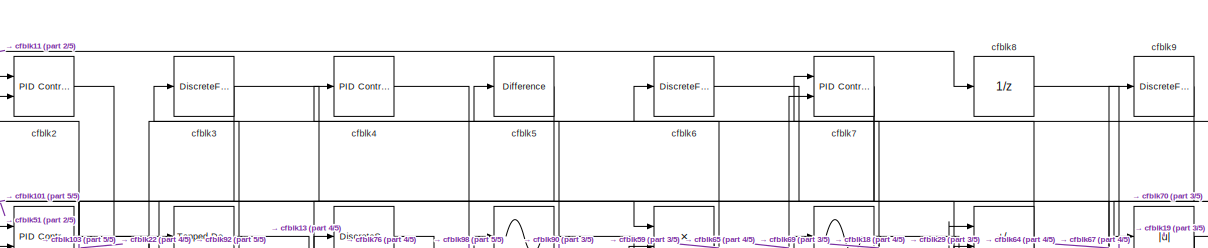
[diagram: root canvas - part 1/5, full width, top band]
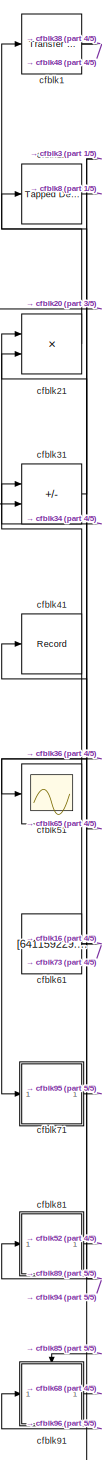
[diagram: root canvas - part 2/5, left side, full height]
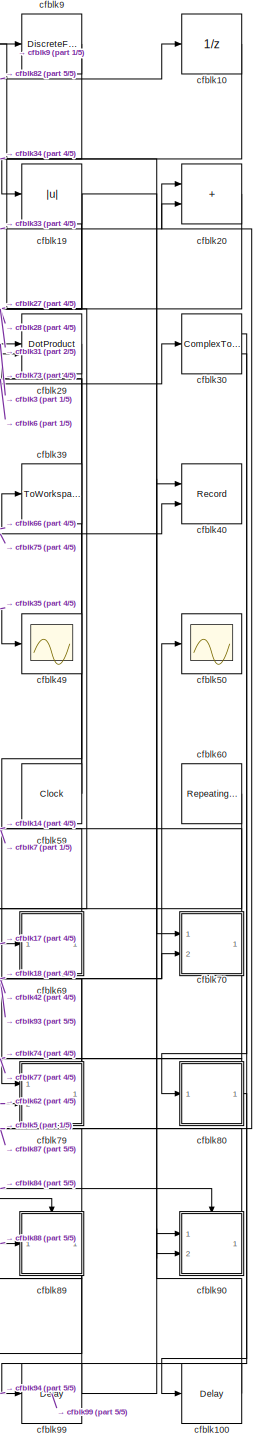
[diagram: root canvas - part 3/5, right side, full height]
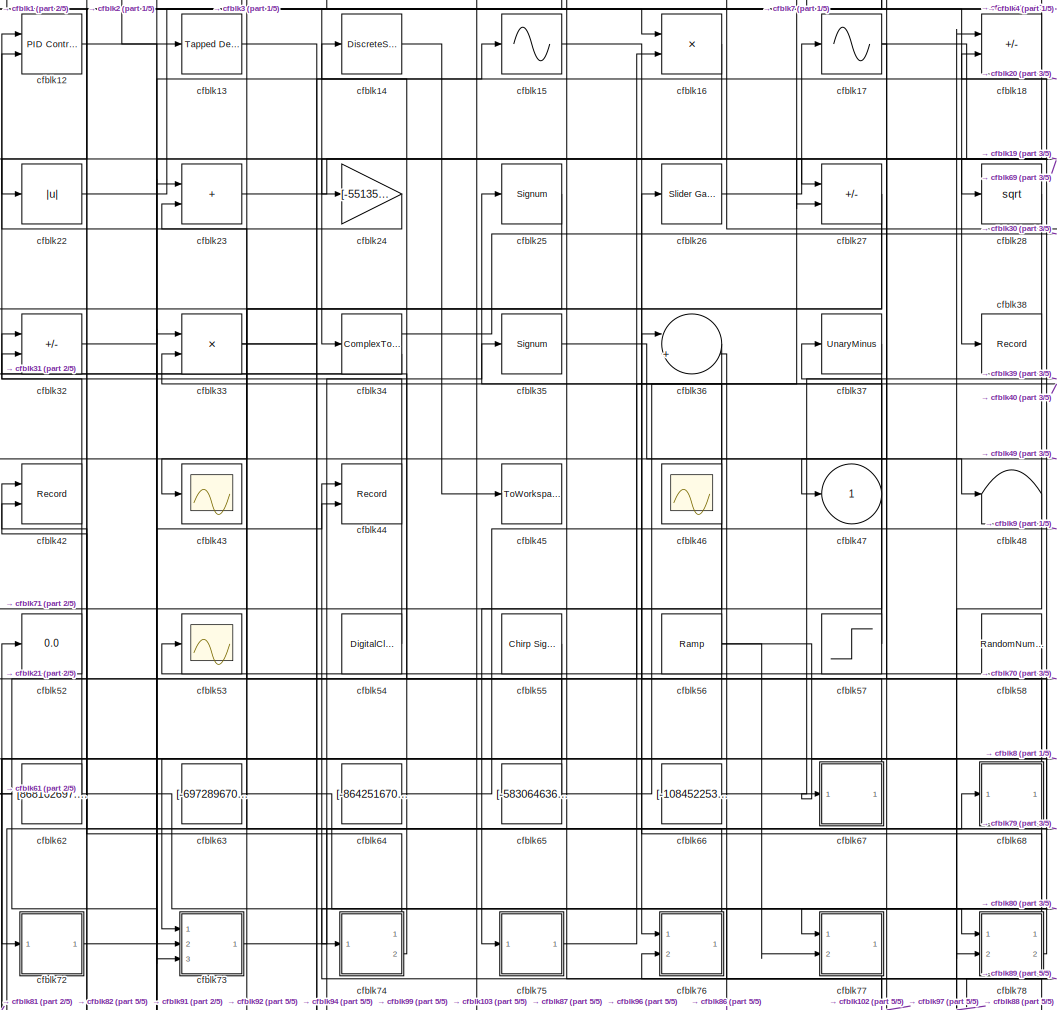
[diagram: root canvas - part 4/5, central region]
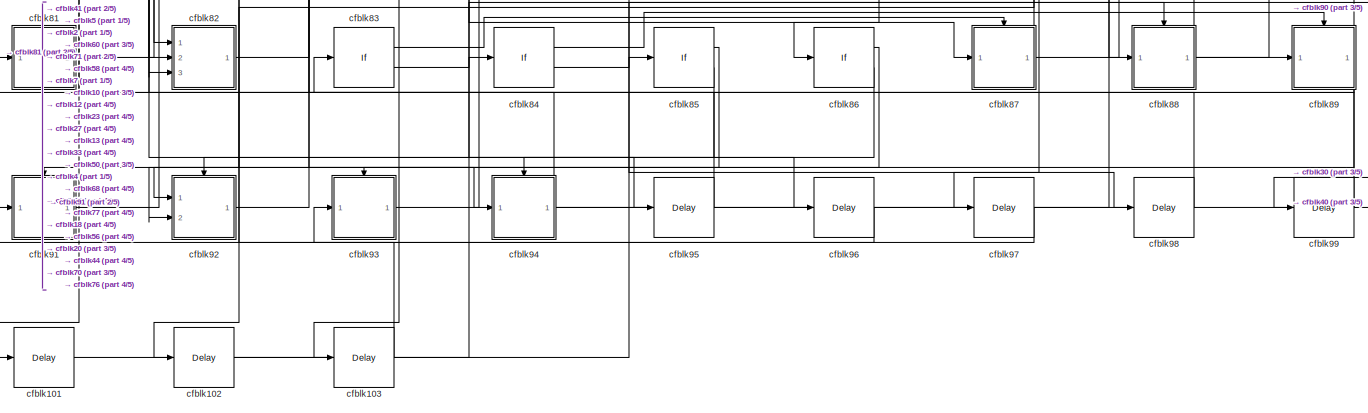
[diagram: root canvas - part 5/5, full width, bottom band]
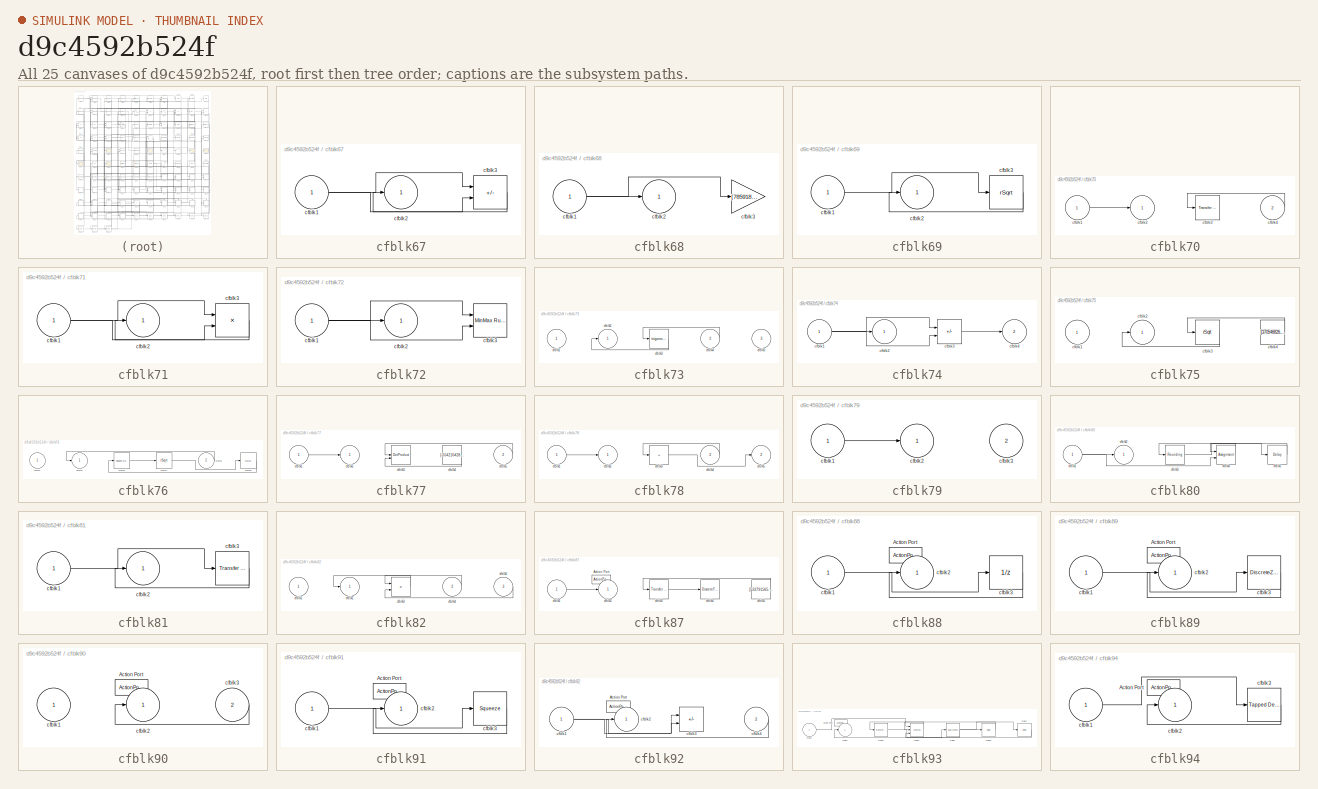
[diagram: thumbnail index - all 25 canvases of the model, root first then tree order]
MODEL slx_d9c4592b524f
KIND model
CONFIG AbsTol = auto
CONFIG EnableMultiTasking = off
CONFIG FixedStep = auto
CONFIG MaxStep = auto
CONFIG MinStep = auto
CONFIG RelTol = 1e-3
CONFIG SampleTimeConstraint = Unconstrained
CONFIG SolverName = VariableStepAuto
CONFIG StartTime = 0.0
CONFIG StopTime = 10.0
BLOCK [Reference] cfblk1  REF=simulink/Discrete/Transfer Fcn
First Order
  Ports = [1, 1]
  SourceBlock = simulink/Discrete/Transfer Fcn\nFirst Order
  SourceProductBaseCode = SL
  SourceType = First Order Transfer Fcn
BLOCK [UnitDelay] cfblk10
  HasFrameUpgradeWarning = on
BLOCK [Delay] cfblk100
  InputPortMap = u0
  Ports = [1, 1]
  SampleTime = 1
BLOCK [Delay] cfblk101
  InputPortMap = u0
  Ports = [1, 1]
  SampleTime = 1
BLOCK [Delay] cfblk102
  InputPortMap = u0
  Ports = [1, 1]
  SampleTime = 1
BLOCK [Delay] cfblk103
  InputPortMap = u0
  Ports = [1, 1]
  SampleTime = 1
BLOCK [Reference] cfblk11  REF=simulink/Discrete/Tapped Delay
  Ports = [1, 1]
  SourceBlock = simulink/Discrete/Tapped Delay
  SourceProductBaseCode = SL
  SourceType = Tapped Delay Line
BLOCK [Reference] cfblk12  REF=slpidlib/PID Controller (2DOF)
  Ports = [2, 1]
  SourceBlock = slpidlib/PID Controller (2DOF)
  SourceProductBaseCode = SL
  SourceType = PID 2dof
BLOCK [Reference] cfblk13  REF=simulink/Discrete/Tapped Delay
  Ports = [1, 1]
  SourceBlock = simulink/Discrete/Tapped Delay
  SourceProductBaseCode = SL
  SourceType = Tapped Delay Line
BLOCK [DiscreteStateSpace] cfblk14
BLOCK [Sin] cfblk15
  Ports = [1, 1]
  SampleTime = 0
  TimeSource = Use external signal
BLOCK [Product] cfblk16
  Inputs = **
  Ports = [2, 1]
BLOCK [Sin] cfblk17
  Ports = [1, 1]
  SampleTime = 0
  TimeSource = Use external signal
BLOCK [Sum] cfblk18
  IconShape = rectangular
  Inputs = +-
  Ports = [2, 1]
BLOCK [Abs] cfblk19
  SaturateOnIntegerOverflow = off
BLOCK [Reference] cfblk2  REF=slpidlib/PID Controller (2DOF)
  Ports = [2, 1]
  SourceBlock = slpidlib/PID Controller (2DOF)
  SourceProductBaseCode = SL
  SourceType = PID 2dof
BLOCK [Sum] cfblk20
  IconShape = rectangular
  Ports = [2, 1]
BLOCK [Product] cfblk21
  Ports = [2, 1]
BLOCK [Abs] cfblk22
  SaturateOnIntegerOverflow = off
BLOCK [Sum] cfblk23
  IconShape = rectangular
  Ports = [2, 1]
BLOCK [Gain] cfblk24
  Gain = [-551356123.102967]
BLOCK [Signum] cfblk25
BLOCK [Reference] cfblk26  REF=simulink/Math
Operations/Slider
Gain
  Ports = [1, 1]
  SourceBlock = simulink/Math\nOperations/Slider\nGain
  SourceProductBaseCode = SL
  SourceType = Slider Gain
BLOCK [Sum] cfblk27
  IconShape = rectangular
  Inputs = +-
  Ports = [2, 1]
BLOCK [Sqrt] cfblk28
BLOCK [DotProduct] cfblk29
  OutDataTypeStr = Inherit: Inherit via internal rule
BLOCK [DiscreteFilter] cfblk3
  InputPortMap = u0
  Ports = [1, 1]
  SampleTime = 1
BLOCK [ComplexToRealImag] cfblk30
  Ports = [1, 2]
BLOCK [Sum] cfblk31
  IconShape = rectangular
  Inputs = --
  Ports = [2, 1]
BLOCK [Sum] cfblk32
  IconShape = rectangular
  Inputs = -+
  Ports = [2, 1]
BLOCK [Product] cfblk33
  Inputs = **
  Ports = [2, 1]
BLOCK [ComplexToRealImag] cfblk34
  Ports = [1, 2]
BLOCK [Signum] cfblk35
BLOCK [Sum] cfblk36
  Inputs = |++
  Ports = [2, 1]
BLOCK [UnaryMinus] cfblk37
BLOCK [Record] cfblk38
  FileSettingsInternal = {"entries":[{"content":{"excelSettings":{"content":{},"type":"Streamout.ExcelSettings"}},"type":"Streamout.FileSettingStorage","uuid":"4657b973-2eff-446c-9fb0-9f6287b31807"}],"packageUris":["http://schema.mathworks.com/mf0/streamout_blocks/R2020a"],"version":"1.0"}
  Ports = [1]
  SignalsInternal = {"entries":[{"content":{"signals":[{"content":{"blockPath":["sampleModel248/cfblk38"],"channel":[],"dimensions":[1],"domain":"sampleModel248/cfblk38","lineColor":"#ff13a6","plots":[1],"port":1,"sid":[""],"signalID":9988,"signalName":"cfblk1"},"type":"RecordBlkView.Signal","uuid":"57bce957-2fdd-423c-8d0d-79339184f327"}]},"type":"RecordBlkView.InputSignals","uuid":"285c4055-8f1f-46df-a613-131e117053...<+96ch>
  VisualizationBindings = {"sparklinesplugin":{"info":[{"bindingParametersList":[],"subplotID":1}]}}
BLOCK [ToWorkspace] cfblk39
  FixptAsFi = on
  MaxDataPoints = inf
  Ports = [1]
  SampleTime = -1
  SaveFormat = Timeseries
  VariableName = kdpifuz
BLOCK [Reference] cfblk4  REF=slpidlib/PID Controller
  Ports = [1, 1]
  SourceBlock = slpidlib/PID Controller
  SourceProductBaseCode = SL
  SourceType = PID 1dof
BLOCK [Record] cfblk40
  CompatibilityTag = XY
  FileSettingsInternal = {"entries":[{"content":{"excelSettings":{"content":{},"type":"Streamout.ExcelSettings"}},"type":"Streamout.FileSettingStorage","uuid":"e8e254c2-0b66-4196-82d5-06a13f5ebabd"}],"packageUris":["http://schema.mathworks.com/mf0/streamout_blocks/R2020a"],"version":"1.0"}
  Layout = [1 1]
  Ports = [2]
  SignalsInternal = {"entries":[{"content":{"signals":[{"content":{"blockPath":["sampleModel248/cfblk40"],"channel":[],"dimensions":[1],"domain":"sampleModel248/cfblk40","lineColor":"#a2142f","plots":[1],"port":1,"sid":[""],"signalID":9992,"signalName":"cfblk94"},"type":"RecordBlkView.Signal","uuid":"96483212-cd48-427b-a849-b49e468cae1c"},{"content":{"blockPath":["sampleModel248/cfblk40"],"channel":[],"dimensions":[1...<+383ch>
  VisualizationBindings = {"xyplotplugin":{"info":[{"series":[{"bindingParametersList":[{"parameter":"X-Axis","signalID":9992,"signalName":"cfblk94"},{"parameter":"Y-Axis","signalID":9996,"signalName":"cfblk75"}],"seriesID":20823}],"subplotID":1}]}}
BLOCK [Record] cfblk41
  FileSettingsInternal = {"entries":[{"content":{"excelSettings":{"content":{},"type":"Streamout.ExcelSettings"}},"type":"Streamout.FileSettingStorage","uuid":"af2688e8-db05-4c26-a761-651d88233be8"}],"packageUris":["http://schema.mathworks.com/mf0/streamout_blocks/R2020a"],"version":"1.0"}
  Ports = [1]
  SignalsInternal = {"entries":[{"content":{"signals":[{"content":{"blockPath":["sampleModel248/cfblk41"],"channel":[],"dimensions":[1],"domain":"sampleModel248/cfblk41","lineColor":"#0072bd","plots":[1],"port":1,"sid":[""],"signalID":10000,"signalName":"cfblk94"},"type":"RecordBlkView.Signal","uuid":"c2de7e0d-ba0f-46c5-868c-2fe38e3ac21e"}]},"type":"RecordBlkView.InputSignals","uuid":"3469a304-3501-4b95-a551-717c17ac...<+98ch>
  VisualizationBindings = {"sparklinesplugin":{"info":[{"bindingParametersList":[],"subplotID":1}]}}
BLOCK [Record] cfblk42
  CompatibilityTag = XY
  FileSettingsInternal = {"entries":[{"content":{"excelSettings":{"content":{},"type":"Streamout.ExcelSettings"}},"type":"Streamout.FileSettingStorage","uuid":"8a6774b2-f76e-4be7-b4b1-672b2e9fdf31"}],"packageUris":["http://schema.mathworks.com/mf0/streamout_blocks/R2020a"],"version":"1.0"}
  Layout = [1 1]
  Ports = [2]
  SignalsInternal = {"entries":[{"content":{"signals":[{"content":{"blockPath":["sampleModel248/cfblk42"],"channel":[],"dimensions":[1],"domain":"sampleModel248/cfblk42","lineColor":"#a2142f","plots":[1],"port":1,"sid":[""],"signalID":10004,"signalName":"cfblk79"},"type":"RecordBlkView.Signal","uuid":"6845512b-980a-4326-b86a-4d7e02a87132"},{"content":{"blockPath":["sampleModel248/cfblk42"],"channel":[],"dimensions":[...<+387ch>
  VisualizationBindings = {"xyplotplugin":{"info":[{"series":[{"bindingParametersList":[{"parameter":"X-Axis","signalID":10004,"signalName":"cfblk79"},{"parameter":"Y-Axis","signalID":10008,"signalName":"cfblk74:1"}],"seriesID":11787}],"subplotID":1}]}}
BLOCK [Scope] cfblk43
  Floating = off
  NumInputPorts = 1
  Ports = [1]
BLOCK [Record] cfblk44
  CompatibilityTag = XY
  FileSettingsInternal = {"entries":[{"content":{"excelSettings":{"content":{},"type":"Streamout.ExcelSettings"}},"type":"Streamout.FileSettingStorage","uuid":"38156eca-3516-4139-b23b-3a3a441e8744"}],"packageUris":["http://schema.mathworks.com/mf0/streamout_blocks/R2020a"],"version":"1.0"}
  Layout = [1 1]
  Ports = [2]
  SignalsInternal = {"entries":[{"content":{"signals":[{"content":{"blockPath":["sampleModel248/cfblk44"],"channel":[],"dimensions":[1],"domain":"sampleModel248/cfblk44","lineColor":"#a2142f","plots":[1],"port":1,"sid":[""],"signalID":10012,"signalName":"cfblk72"},"type":"RecordBlkView.Signal","uuid":"63087910-4408-4e77-b969-9ff7fd655d93"},{"content":{"blockPath":["sampleModel248/cfblk44"],"channel":[],"dimensions":[...<+385ch>
  VisualizationBindings = {"xyplotplugin":{"info":[{"series":[{"bindingParametersList":[{"parameter":"X-Axis","signalID":10012,"signalName":"cfblk72"},{"parameter":"Y-Axis","signalID":10016,"signalName":"cfblk88"}],"seriesID":2509}],"subplotID":1}]}}
BLOCK [ToWorkspace] cfblk45
  FixptAsFi = on
  MaxDataPoints = inf
  Ports = [1]
  SampleTime = -1
  SaveFormat = Timeseries
  VariableName = msjueba
BLOCK [Scope] cfblk46
  Floating = on
  NumInputPorts = 1
  Ports = []
BLOCK [Outport] cfblk47
BLOCK [Terminator] cfblk48
BLOCK [Scope] cfblk49
  Floating = off
  NumInputPorts = 1
  Ports = [1]
BLOCK [Reference] cfblk5  REF=simulink/Discrete/Difference
  Ports = [1, 1]
  SourceBlock = simulink/Discrete/Difference
  SourceProductBaseCode = SL
  SourceType = Difference
BLOCK [Scope] cfblk50
  Floating = off
  NumInputPorts = 1
  Ports = [1]
BLOCK [Scope] cfblk51
  Floating = off
  NumInputPorts = 1
  Ports = [1]
BLOCK [Display] cfblk52
  Decimation = 1
  Ports = [1]
BLOCK [Scope] cfblk53
  Floating = off
  NumInputPorts = 1
  Ports = [1]
BLOCK [DigitalClock] cfblk54
BLOCK [Reference] cfblk55  REF=simulink/Sources/Chirp Signal
  Ports = [0, 1]
  SourceBlock = simulink/Sources/Chirp Signal
  SourceProductBaseCode = SL
  SourceType = chirp
BLOCK [Reference] cfblk56  REF=simulink/Sources/Ramp
  Ports = [0, 1]
  SourceBlock = simulink/Sources/Ramp
  SourceProductBaseCode = SL
  SourceType = Ramp
BLOCK [Step] cfblk57
  After = [-931102993.067420]
  Before = [-143517300.049279]
  SampleTime = 0
  Time = [16.000000]
BLOCK [RandomNumber] cfblk58
  Mean = [-94668.812699]
  SampleTime = 0.1
  Seed = [243885684.000000]
  Variance = [59598.162771]
BLOCK [Clock] cfblk59
BLOCK [DiscreteFir] cfblk6
  InputPortMap = u0
  OutputPortMap = o0
  Ports = [1, 1]
  SampleTime = 1
BLOCK [Reference] cfblk60  REF=simulink/Sources/Repeating
Sequence
Stair
  Ports = [0, 1]
  SourceBlock = simulink/Sources/Repeating\nSequence\nStair
  SourceProductBaseCode = SL
  SourceType = Repeating Sequence Stair
BLOCK [Constant] cfblk61
  SampleTime = 1
  Value = [641159229.693592]
BLOCK [Constant] cfblk62
  SampleTime = 1
  Value = [868162697.031384]
BLOCK [Constant] cfblk63
  SampleTime = 1
  Value = [-697289670.604161]
BLOCK [Constant] cfblk64
  SampleTime = 1
  Value = [-864251670.245932]
BLOCK [Constant] cfblk65
  SampleTime = 1
  Value = [-583064636.626297]
BLOCK [Constant] cfblk66
  SampleTime = 1
  Value = [-108452253.575635]
BLOCK [SubSystem] cfblk67
  Ports = [1, 1]
  RequestExecContextInheritance = off
BLOCK [Inport] cfblk67/cfblk1
BLOCK [Outport] cfblk67/cfblk2
BLOCK [Sum] cfblk67/cfblk3
  IconShape = rectangular
  Inputs = +-
  Ports = [2, 1]
BLOCK [SubSystem] cfblk68
  Ports = [1, 1]
  RequestExecContextInheritance = off
BLOCK [Inport] cfblk68/cfblk1
BLOCK [Outport] cfblk68/cfblk2
BLOCK [Gain] cfblk68/cfblk3
  Gain = [785918242.816621]
BLOCK [SubSystem] cfblk69
  Ports = [1, 1]
  RequestExecContextInheritance = off
BLOCK [Inport] cfblk69/cfblk1
BLOCK [Outport] cfblk69/cfblk2
BLOCK [Sqrt] cfblk69/cfblk3
  AlgorithmType = Newton-Raphson
  Operator = rSqrt
BLOCK [Reference] cfblk7  REF=slpidlib/PID Controller (2DOF)
  Ports = [2, 1]
  SourceBlock = slpidlib/PID Controller (2DOF)
  SourceProductBaseCode = SL
  SourceType = PID 2dof
BLOCK [SubSystem] cfblk70
  Ports = [2, 1]
  RequestExecContextInheritance = off
BLOCK [Inport] cfblk70/cfblk1
BLOCK [Outport] cfblk70/cfblk2
BLOCK [Reference] cfblk70/cfblk3  REF=simulink/Discrete/Transfer Fcn
First Order
  Ports = [1, 1]
  SourceBlock = simulink/Discrete/Transfer Fcn\nFirst Order
  SourceProductBaseCode = SL
  SourceType = First Order Transfer Fcn
BLOCK [Inport] cfblk70/cfblk4
  Port = 2
BLOCK [SubSystem] cfblk71
  Ports = [1, 1]
  RequestExecContextInheritance = off
BLOCK [Inport] cfblk71/cfblk1
BLOCK [Outport] cfblk71/cfblk2
BLOCK [Product] cfblk71/cfblk3
  Inputs = **
  Ports = [2, 1]
BLOCK [SubSystem] cfblk72
  Ports = [1, 1]
  RequestExecContextInheritance = off
BLOCK [Inport] cfblk72/cfblk1
BLOCK [Outport] cfblk72/cfblk2
BLOCK [Reference] cfblk72/cfblk3  REF=simulink/Math
Operations/MinMax
Running
Resettable
  Ports = [2, 1]
  SourceBlock = simulink/Math\nOperations/MinMax\nRunning\nResettable
  SourceProductBaseCode = SL
  SourceType = MinMax Running Resettable
BLOCK [SubSystem] cfblk73
  Ports = [3, 1]
  RequestExecContextInheritance = off
BLOCK [Inport] cfblk73/cfblk1
BLOCK [Outport] cfblk73/cfblk2
BLOCK [Trigonometry] cfblk73/cfblk3
  Ports = [1, 1]
BLOCK [Inport] cfblk73/cfblk4
  Port = 2
BLOCK [Inport] cfblk73/cfblk5
  Port = 3
BLOCK [SubSystem] cfblk74
  Ports = [1, 2]
  RequestExecContextInheritance = off
BLOCK [Inport] cfblk74/cfblk1
BLOCK [Outport] cfblk74/cfblk2
BLOCK [Sum] cfblk74/cfblk3
  IconShape = rectangular
  Inputs = +-
  Ports = [2, 1]
BLOCK [Outport] cfblk74/cfblk4
  Port = 2
BLOCK [SubSystem] cfblk75
  Ports = [1, 1]
  RequestExecContextInheritance = off
BLOCK [Inport] cfblk75/cfblk1
BLOCK [Outport] cfblk75/cfblk2
BLOCK [Sqrt] cfblk75/cfblk3
  AlgorithmType = Newton-Raphson
  Operator = rSqrt
BLOCK [Constant] cfblk75/cfblk4
  SampleTime = 1
  Value = [370546826.301811]
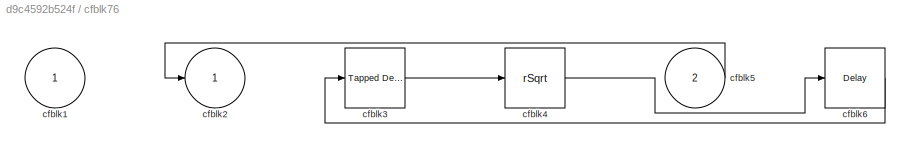
BLOCK [SubSystem] cfblk76
  Ports = [2, 1]
  RequestExecContextInheritance = off
BLOCK [Inport] cfblk76/cfblk1
BLOCK [Outport] cfblk76/cfblk2
BLOCK [Reference] cfblk76/cfblk3  REF=simulink/Discrete/Tapped Delay
  Ports = [1, 1]
  SourceBlock = simulink/Discrete/Tapped Delay
  SourceProductBaseCode = SL
  SourceType = Tapped Delay Line
BLOCK [Sqrt] cfblk76/cfblk4
  AlgorithmType = Newton-Raphson
  Operator = rSqrt
BLOCK [Inport] cfblk76/cfblk5
  Port = 2
BLOCK [Delay] cfblk76/cfblk6
  InputPortMap = u0
  Ports = [1, 1]
  SampleTime = 1
BLOCK [SubSystem] cfblk77
  Ports = [2, 1]
  RequestExecContextInheritance = off
BLOCK [Inport] cfblk77/cfblk1
BLOCK [Outport] cfblk77/cfblk2
BLOCK [DotProduct] cfblk77/cfblk3
  OutDataTypeStr = Inherit: Inherit via internal rule
BLOCK [Constant] cfblk77/cfblk4
  SampleTime = 1
  Value = [-554210428.250196]
BLOCK [Inport] cfblk77/cfblk5
  Port = 2
BLOCK [SubSystem] cfblk78
  Ports = [2, 2]
  RequestExecContextInheritance = off
BLOCK [Inport] cfblk78/cfblk1
BLOCK [Outport] cfblk78/cfblk2
BLOCK [Sum] cfblk78/cfblk3
  IconShape = rectangular
  Inputs = +
  Ports = [1, 1]
BLOCK [Inport] cfblk78/cfblk4
  Port = 2
BLOCK [Outport] cfblk78/cfblk5
  Port = 2
BLOCK [SubSystem] cfblk79
  Ports = [2, 1]
  RequestExecContextInheritance = off
BLOCK [Inport] cfblk79/cfblk1
BLOCK [Outport] cfblk79/cfblk2
BLOCK [Inport] cfblk79/cfblk3
  Port = 2
BLOCK [UnitDelay] cfblk8
  HasFrameUpgradeWarning = on
BLOCK [SubSystem] cfblk80
  Ports = [1, 1]
  RequestExecContextInheritance = off
BLOCK [Inport] cfblk80/cfblk1
BLOCK [Outport] cfblk80/cfblk2
BLOCK [Rounding] cfblk80/cfblk3
BLOCK [Assignment] cfblk80/cfblk4
  DiagnosticForDimensions = Warning
  IndexOptions = Index vector (dialog)
  Indices = 1
  OutputSizes = 1
  Ports = [2, 1]
BLOCK [Delay] cfblk80/cfblk5
  InputPortMap = u0
  Ports = [1, 1]
  SampleTime = 1
BLOCK [SubSystem] cfblk81
  Ports = [1, 1]
  RequestExecContextInheritance = off
BLOCK [Inport] cfblk81/cfblk1
BLOCK [Outport] cfblk81/cfblk2
BLOCK [Reference] cfblk81/cfblk3  REF=simulink/Discrete/Transfer Fcn
Lead or Lag
  Ports = [1, 1]
  SourceBlock = simulink/Discrete/Transfer Fcn\nLead or Lag
  SourceProductBaseCode = SL
  SourceType = Lead or Lag Compensator
BLOCK [SubSystem] cfblk82
  Ports = [3, 1]
  RequestExecContextInheritance = off
BLOCK [Inport] cfblk82/cfblk1
BLOCK [Outport] cfblk82/cfblk2
BLOCK [Product] cfblk82/cfblk3
  Inputs = **
  Ports = [2, 1]
BLOCK [Inport] cfblk82/cfblk4
  Port = 2
BLOCK [Inport] cfblk82/cfblk5
  Port = 3
BLOCK [If] cfblk83
  IfExpression = u1 >= 0
  Ports = [1, 2]
  SampleTime = 1
BLOCK [If] cfblk84
  IfExpression = u1 >= 0
  Ports = [1, 2]
  SampleTime = 1
BLOCK [If] cfblk85
  IfExpression = u1 >= 0
  Ports = [1, 2]
  SampleTime = 1
BLOCK [If] cfblk86
  IfExpression = u1 >= 0
  Ports = [1, 2]
  SampleTime = 1
BLOCK [SubSystem] cfblk87
  Ports = [1, 1, 0, 0, 0, 0, 0, 1]
  RequestExecContextInheritance = off
  TreatAsAtomicUnit = on
BLOCK [ActionPort] cfblk87/Action Port
  ActionPortLabel = if(u1 >= 0)
BLOCK [Inport] cfblk87/cfblk1
BLOCK [Outport] cfblk87/cfblk2
BLOCK [Reference] cfblk87/cfblk3  REF=simulink/Discrete/Transfer Fcn
Lead or Lag
  Ports = [1, 1]
  SourceBlock = simulink/Discrete/Transfer Fcn\nLead or Lag
  SourceProductBaseCode = SL
  SourceType = Lead or Lag Compensator
BLOCK [DiscreteFilter] cfblk87/cfblk4
  InputPortMap = u0
  Ports = [1, 1]
BLOCK [Constant] cfblk87/cfblk5
  SampleTime = 1
  Value = [533791565.201880]
BLOCK [SubSystem] cfblk88
  Ports = [1, 1, 0, 0, 0, 0, 0, 1]
  RequestExecContextInheritance = off
  TreatAsAtomicUnit = on
BLOCK [ActionPort] cfblk88/Action Port
  ActionPortLabel = else
BLOCK [Inport] cfblk88/cfblk1
BLOCK [Outport] cfblk88/cfblk2
BLOCK [UnitDelay] cfblk88/cfblk3
  HasFrameUpgradeWarning = on
  SampleTime = -1
BLOCK [SubSystem] cfblk89
  Ports = [1, 1, 0, 0, 0, 0, 0, 1]
  RequestExecContextInheritance = off
  TreatAsAtomicUnit = on
BLOCK [ActionPort] cfblk89/Action Port
  ActionPortLabel = if(u1 >= 0)
BLOCK [Inport] cfblk89/cfblk1
BLOCK [Outport] cfblk89/cfblk2
BLOCK [DiscreteZeroPole] cfblk89/cfblk3
  Gain = 1
  Poles = [0 0.5]
  SampleTime = -1
BLOCK [DiscreteFilter] cfblk9
  InputPortMap = u0
  Ports = [1, 1]
  SampleTime = 1
BLOCK [SubSystem] cfblk90
  Ports = [2, 1, 0, 0, 0, 0, 0, 1]
  RequestExecContextInheritance = off
  TreatAsAtomicUnit = on
BLOCK [ActionPort] cfblk90/Action Port
  ActionPortLabel = else
BLOCK [Inport] cfblk90/cfblk1
BLOCK [Outport] cfblk90/cfblk2
BLOCK [Inport] cfblk90/cfblk3
  Port = 2
BLOCK [SubSystem] cfblk91
  Ports = [1, 1, 0, 0, 0, 0, 0, 1]
  RequestExecContextInheritance = off
  TreatAsAtomicUnit = on
BLOCK [ActionPort] cfblk91/Action Port
  ActionPortLabel = if(u1 >= 0)
BLOCK [Inport] cfblk91/cfblk1
BLOCK [Outport] cfblk91/cfblk2
BLOCK [Squeeze] cfblk91/cfblk3
BLOCK [SubSystem] cfblk92
  Ports = [2, 1, 0, 0, 0, 0, 0, 1]
  RequestExecContextInheritance = off
  TreatAsAtomicUnit = on
BLOCK [ActionPort] cfblk92/Action Port
  ActionPortLabel = else
BLOCK [Inport] cfblk92/cfblk1
BLOCK [Outport] cfblk92/cfblk2
BLOCK [Sum] cfblk92/cfblk3
  IconShape = rectangular
  Inputs = +-
  Ports = [2, 1]
BLOCK [Inport] cfblk92/cfblk4
  Port = 2
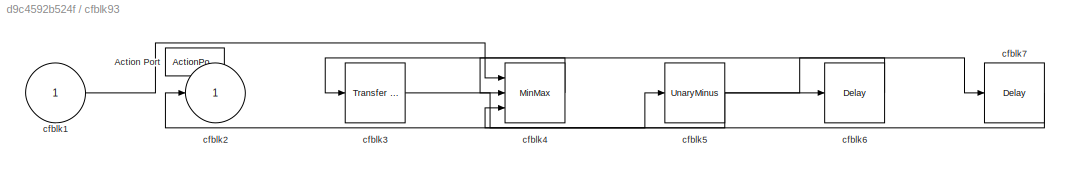
BLOCK [SubSystem] cfblk93
  Ports = [1, 1, 0, 0, 0, 0, 0, 1]
  RequestExecContextInheritance = off
  TreatAsAtomicUnit = on
BLOCK [ActionPort] cfblk93/Action Port
  ActionPortLabel = if(u1 >= 0)
BLOCK [Inport] cfblk93/cfblk1
BLOCK [Outport] cfblk93/cfblk2
BLOCK [Reference] cfblk93/cfblk3  REF=simulink/Discrete/Transfer Fcn
First Order
  Ports = [1, 1]
  SourceBlock = simulink/Discrete/Transfer Fcn\nFirst Order
  SourceProductBaseCode = SL
  SourceType = First Order Transfer Fcn
BLOCK [MinMax] cfblk93/cfblk4
  Inputs = 3
  Ports = [3, 1]
BLOCK [UnaryMinus] cfblk93/cfblk5
BLOCK [Delay] cfblk93/cfblk6
  InputPortMap = u0
  Ports = [1, 1]
BLOCK [Delay] cfblk93/cfblk7
  InputPortMap = u0
  Ports = [1, 1]
BLOCK [SubSystem] cfblk94
  Ports = [1, 1, 0, 0, 0, 0, 0, 1]
  RequestExecContextInheritance = off
  TreatAsAtomicUnit = on
BLOCK [ActionPort] cfblk94/Action Port
  ActionPortLabel = else
BLOCK [Inport] cfblk94/cfblk1
BLOCK [Outport] cfblk94/cfblk2
BLOCK [Reference] cfblk94/cfblk3  REF=simulink/Discrete/Tapped Delay
  Ports = [1, 1]
  SourceBlock = simulink/Discrete/Tapped Delay
  SourceProductBaseCode = SL
  SourceType = Tapped Delay Line
BLOCK [Delay] cfblk95
  InputPortMap = u0
  Ports = [1, 1]
  SampleTime = 1
BLOCK [Delay] cfblk96
  InputPortMap = u0
  Ports = [1, 1]
  SampleTime = 1
BLOCK [Delay] cfblk97
  InputPortMap = u0
  Ports = [1, 1]
  SampleTime = 1
BLOCK [Delay] cfblk98
  InputPortMap = u0
  Ports = [1, 1]
  SampleTime = 1
BLOCK [Delay] cfblk99
  InputPortMap = u0
  Ports = [1, 1]
  SampleTime = 1
LINE cfblk100:1 -> cfblk90:1
LINE cfblk101:1 -> cfblk84:1
LINE cfblk102:1 -> cfblk85:1
LINE cfblk103:1 -> cfblk2:2
LINE cfblk10:1 -> cfblk34:1
LINE cfblk11:1 -> cfblk8:1
LINE cfblk12:1 -> cfblk94:1
LINE cfblk13:1 -> cfblk87:1
LINE cfblk14:1 -> cfblk45:1
LINE cfblk15:1 -> cfblk76:1
LINE cfblk16:1 -> cfblk24:1
NET cfblk17:1 -> cfblk47:1, cfblk69:1
NET cfblk18:1 -> cfblk4:1, cfblk97:1
NET cfblk19:1 -> cfblk27:2, cfblk28:1, cfblk73:3, cfblk90:2
NET cfblk1:1 -> cfblk38:1, cfblk48:1
LINE cfblk20:1 -> cfblk31:2
LINE cfblk21:1 -> cfblk11:1
LINE cfblk22:1 -> cfblk16:1
LINE cfblk23:1 -> cfblk27:1
LINE cfblk24:1 -> cfblk12:1
LINE cfblk25:1 -> cfblk43:1
LINE cfblk26:1 -> cfblk17:1
NET cfblk27:1 -> cfblk103:1, cfblk82:3
LINE cfblk28:1 -> cfblk78:2
LINE cfblk29:1 -> cfblk79:1
LINE cfblk2:1 -> cfblk13:1
LINE cfblk30:1 -> cfblk99:1
LINE cfblk30:2 -> cfblk80:1
LINE cfblk31:1 -> cfblk1:1
LINE cfblk32:1 -> cfblk15:1
NET cfblk33:1 -> cfblk20:2, cfblk96:1
LINE cfblk34:1 -> cfblk30:1
LINE cfblk34:2 -> cfblk31:1
LINE cfblk35:1 -> cfblk49:1
LINE cfblk36:1 -> cfblk71:1
LINE cfblk37:1 -> cfblk75:1
NET cfblk3:1 -> cfblk29:1, cfblk51:1
LINE cfblk4:1 -> cfblk98:1
LINE cfblk54:1 -> cfblk12:2
LINE cfblk55:1 -> cfblk73:1
NET cfblk56:1 -> cfblk35:1, cfblk72:1, cfblk77:2, cfblk88:1
NET cfblk57:1 -> cfblk33:2, cfblk37:1
LINE cfblk58:1 -> cfblk82:1
NET cfblk59:1 -> cfblk29:2, cfblk6:1
LINE cfblk5:1 -> cfblk101:1
LINE cfblk60:1 -> cfblk82:2
NET cfblk61:1 -> cfblk16:2, cfblk21:1, cfblk73:2
NET cfblk62:1 -> cfblk32:2, cfblk79:2
LINE cfblk63:1 -> cfblk78:1
LINE cfblk64:1 -> cfblk9:1
NET cfblk65:1 -> cfblk21:2, cfblk7:2
LINE cfblk66:1 -> cfblk39:1
NET cfblk67/cfblk1:1 -> cfblk67/cfblk3:1, cfblk67/cfblk3:2
LINE cfblk67/cfblk3:1 -> cfblk67/cfblk2:1
LINE cfblk67:1 -> cfblk26:1
NET cfblk68/cfblk1:1 -> cfblk68/cfblk2:1, cfblk68/cfblk3:1
NET cfblk68:1 -> cfblk23:2, cfblk86:1
LINE cfblk69/cfblk1:1 -> cfblk69/cfblk3:1
LINE cfblk69/cfblk3:1 -> cfblk69/cfblk2:1
LINE cfblk69:1 -> cfblk7:1
LINE cfblk6:1 -> cfblk70:1
LINE cfblk70/cfblk1:1 -> cfblk70/cfblk2:1
LINE cfblk70/cfblk4:1 -> cfblk70/cfblk3:1
NET cfblk70:1 -> cfblk14:1, cfblk74:1
NET cfblk71/cfblk1:1 -> cfblk71/cfblk3:1, cfblk71/cfblk3:2
LINE cfblk71/cfblk3:1 -> cfblk71/cfblk2:1
LINE cfblk71:1 -> cfblk95:1
NET cfblk72/cfblk1:1 -> cfblk72/cfblk2:1, cfblk72/cfblk3:1, cfblk72/cfblk3:2
LINE cfblk72:1 -> cfblk44:1
LINE cfblk73/cfblk3:1 -> cfblk73/cfblk2:1
LINE cfblk73/cfblk4:1 -> cfblk73/cfblk3:1
LINE cfblk73:1 -> cfblk25:1
NET cfblk74/cfblk1:1 -> cfblk74/cfblk2:1, cfblk74/cfblk3:1, cfblk74/cfblk3:2
LINE cfblk74/cfblk3:1 -> cfblk74/cfblk4:1
LINE cfblk74:1 -> cfblk42:2
LINE cfblk74:2 -> cfblk32:1
LINE cfblk75/cfblk3:1 -> cfblk75/cfblk2:1
LINE cfblk75/cfblk4:1 -> cfblk75/cfblk3:1
LINE cfblk75:1 -> cfblk40:2
LINE cfblk76/cfblk3:1 -> cfblk76/cfblk4:1
LINE cfblk76/cfblk4:1 -> cfblk76/cfblk6:1
LINE cfblk76/cfblk5:1 -> cfblk76/cfblk2:1
LINE cfblk76/cfblk6:1 -> cfblk76/cfblk3:1
LINE cfblk76:1 -> cfblk3:1
LINE cfblk77/cfblk1:1 -> cfblk77/cfblk2:1
LINE cfblk77/cfblk4:1 -> cfblk77/cfblk3:2
LINE cfblk77/cfblk5:1 -> cfblk77/cfblk3:1
LINE cfblk77:1 -> cfblk102:1
LINE cfblk78/cfblk1:1 -> cfblk78/cfblk2:1
LINE cfblk78/cfblk3:1 -> cfblk78/cfblk5:1
LINE cfblk78/cfblk4:1 -> cfblk78/cfblk3:1
LINE cfblk78:1 -> cfblk36:1
LINE cfblk78:2 -> cfblk53:1
LINE cfblk79/cfblk1:1 -> cfblk79/cfblk2:1
NET cfblk79:1 -> cfblk18:2, cfblk42:1
NET cfblk7:1 -> cfblk22:1, cfblk92:1
NET cfblk80/cfblk1:1 -> cfblk80/cfblk2:1, cfblk80/cfblk4:2
LINE cfblk80/cfblk3:1 -> cfblk80/cfblk5:1
LINE cfblk80/cfblk4:1 -> cfblk80/cfblk3:1
LINE cfblk80/cfblk5:1 -> cfblk80/cfblk4:1
NET cfblk80:1 -> cfblk100:1, cfblk77:1
LINE cfblk81/cfblk1:1 -> cfblk81/cfblk3:1
LINE cfblk81/cfblk3:1 -> cfblk81/cfblk2:1
LINE cfblk81:1 -> cfblk52:1
LINE cfblk82/cfblk3:1 -> cfblk82/cfblk2:1
LINE cfblk82/cfblk4:1 -> cfblk82/cfblk3:1
LINE cfblk82/cfblk5:1 -> cfblk82/cfblk3:2
LINE cfblk82:1 -> cfblk10:1
LINE cfblk83:1 -> cfblk87:ifaction
LINE cfblk83:2 -> cfblk88:ifaction
LINE cfblk84:1 -> cfblk89:ifaction
LINE cfblk84:2 -> cfblk90:ifaction
LINE cfblk85:1 -> cfblk91:ifaction
LINE cfblk85:2 -> cfblk92:ifaction
LINE cfblk86:1 -> cfblk93:ifaction
LINE cfblk86:2 -> cfblk94:ifaction
LINE cfblk87/cfblk1:1 -> cfblk87/cfblk2:1
LINE cfblk87/cfblk3:1 -> cfblk87/cfblk4:1
LINE cfblk87/cfblk5:1 -> cfblk87/cfblk3:1
NET cfblk87:1 -> cfblk20:1, cfblk36:2
LINE cfblk88/cfblk1:1 -> cfblk88/cfblk3:1
LINE cfblk88/cfblk3:1 -> cfblk88/cfblk2:1
NET cfblk88:1 -> cfblk44:2, cfblk70:2, cfblk89:1
LINE cfblk89/cfblk1:1 -> cfblk89/cfblk3:1
LINE cfblk89/cfblk3:1 -> cfblk89/cfblk2:1
NET cfblk89:1 -> cfblk76:2, cfblk81:1, cfblk92:2
LINE cfblk8:1 -> cfblk67:1
LINE cfblk90/cfblk3:1 -> cfblk90/cfblk2:1
LINE cfblk90:1 -> cfblk5:1
LINE cfblk91/cfblk1:1 -> cfblk91/cfblk3:1
LINE cfblk91/cfblk3:1 -> cfblk91/cfblk2:1
LINE cfblk91:1 -> cfblk68:1
NET cfblk92/cfblk1:1 -> cfblk92/cfblk3:1, cfblk92/cfblk3:2
LINE cfblk92/cfblk4:1 -> cfblk92/cfblk2:1
LINE cfblk92:1 -> cfblk33:1
LINE cfblk93/cfblk1:1 -> cfblk93/cfblk4:1
LINE cfblk93/cfblk3:1 -> cfblk93/cfblk5:1
LINE cfblk93/cfblk4:1 -> cfblk93/cfblk3:1
NET cfblk93/cfblk5:1 -> cfblk93/cfblk2:1, cfblk93/cfblk6:1, cfblk93/cfblk7:1
LINE cfblk93/cfblk6:1 -> cfblk93/cfblk4:2
LINE cfblk93/cfblk7:1 -> cfblk93/cfblk4:3
LINE cfblk93:1 -> cfblk50:1
LINE cfblk94/cfblk1:1 -> cfblk94/cfblk3:1
LINE cfblk94/cfblk3:1 -> cfblk94/cfblk2:1
NET cfblk94:1 -> cfblk18:1, cfblk40:1, cfblk41:1
LINE cfblk95:1 -> cfblk83:1
LINE cfblk96:1 -> cfblk91:1
LINE cfblk97:1 -> cfblk93:1
LINE cfblk98:1 -> cfblk2:1
LINE cfblk99:1 -> cfblk23:1
LINE cfblk9:1 -> cfblk19:1
note: NET lines group one-source signal fan-out (src -> all destinations, sorted); 1:1 wires keep LINE
